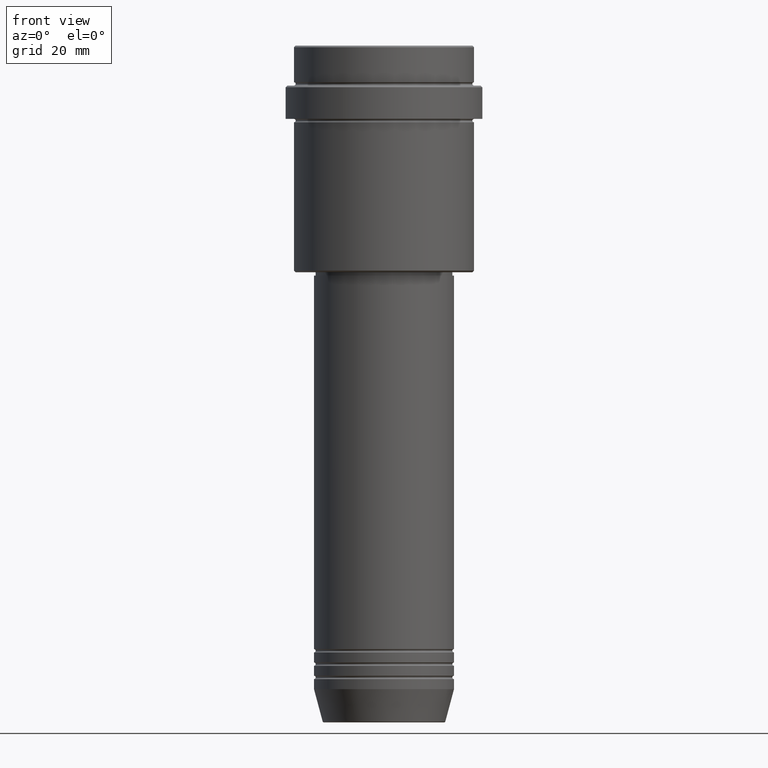
[diagram: clean part render]
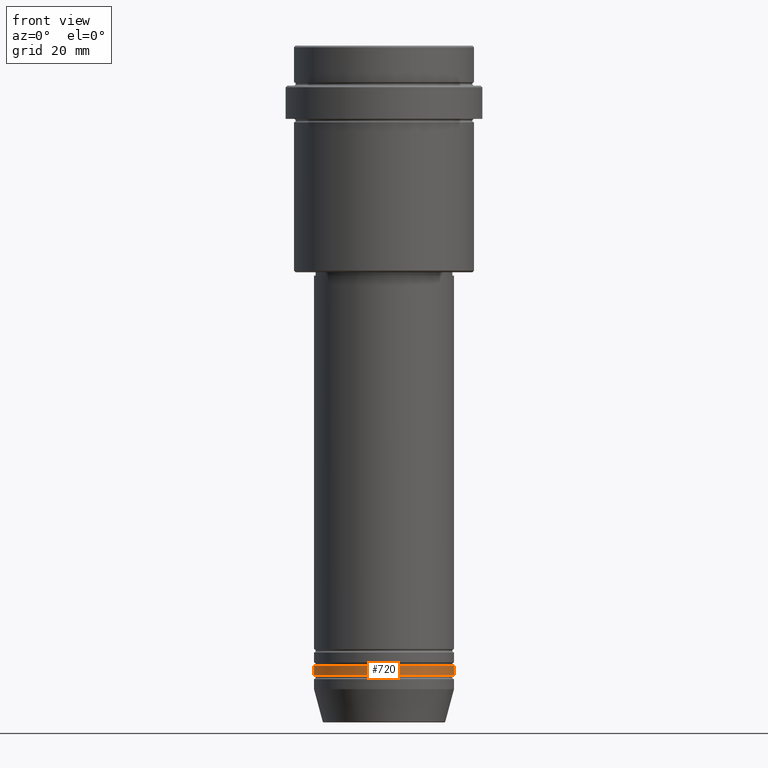
[diagram: same view with one face highlighted and labeled with its STEP entity id]
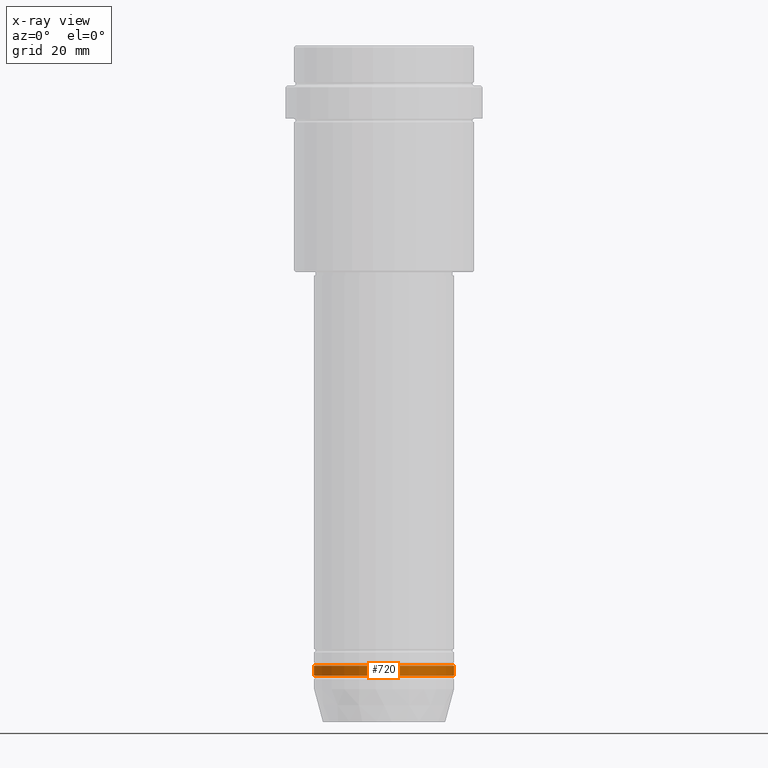
[diagram: x-ray of the same camera — body ghosted, the highlighted face saturated]
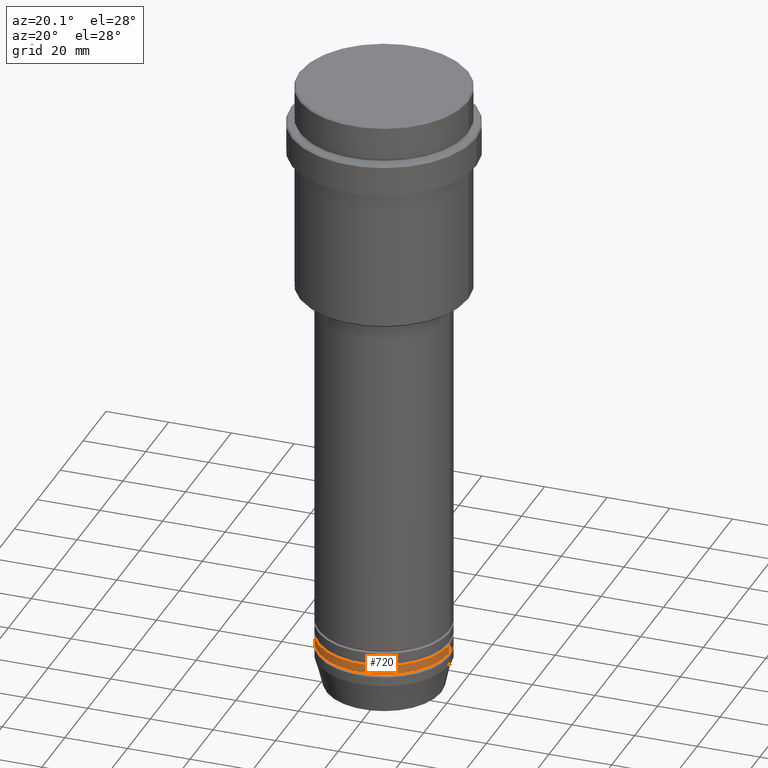
[diagram: same view with one face highlighted and labeled with its STEP entity id]
A machine part, front view. The second image highlights one B-rep face of the part: STEP entity #720.
The next image is the same camera in x-ray: the body ghosted, the highlighted face saturated — about 0% of this face is hidden behind the body in this view.
A second angle (auxiliary view) of the same face is appended — the face is thin or edge-on in the first view.
In plain terms, the highlighted cylindrical surface (partial cylindrical patch) has radius 21 mm, axis along (-0, -0, 1).
Its self-contained STEP definition (entity closure, byte-faithful):
#42 = CARTESIAN_POINT ( 'NONE',  ( 0.000000000000000000, 0.000000000000000000, -185.9999999999998863 ) ) ;
#92 = DIRECTION ( 'NONE',  ( -0.000000000000000000, -0.000000000000000000, 1.000000000000000000 ) ) ;
#156 = EDGE_CURVE ( 'NONE', #1375, #1110, #706, .T. ) ;
#178 = VERTEX_POINT ( 'NONE', #453 ) ;
#300 = CARTESIAN_POINT ( 'NONE',  ( 21.00000000000000000, 0.000000000000000000, -185.9999999999998863 ) ) ;
#305 = DIRECTION ( 'NONE',  ( -0.000000000000000000, -0.000000000000000000, 1.000000000000000000 ) ) ;
#329 = ORIENTED_EDGE ( 'NONE', *, *, #156, .F. ) ;
#401 = ORIENTED_EDGE ( 'NONE', *, *, #1241, .T. ) ;
#423 = ORIENTED_EDGE ( 'NONE', *, *, #1345, .T. ) ;
#440 = EDGE_LOOP ( 'NONE', ( #754, #423, #401, #329 ) ) ;
#453 = CARTESIAN_POINT ( 'NONE',  ( -21.00000000000000000, 2.571758278209441661E-15, -188.9999999999998863 ) ) ;
#513 = LINE ( 'NONE', #1073, #906 ) ;
#673 = FACE_OUTER_BOUND ( 'NONE', #440, .T. ) ;
#692 = CARTESIAN_POINT ( 'NONE',  ( -21.00000000000000000, 2.571758278209441661E-15, -185.9999999999998863 ) ) ;
#706 = CIRCLE ( 'NONE', #886, 21.00000000000000000 ) ;
#711 = LINE ( 'NONE', #1262, #1062 ) ;
#720 = ADVANCED_FACE ( 'NONE', ( #673 ), #1104, .T. ) ;
#754 = ORIENTED_EDGE ( 'NONE', *, *, #1169, .F. ) ;
#762 = DIRECTION ( 'NONE',  ( 1.000000000000000000, 0.000000000000000000, 0.000000000000000000 ) ) ;
#787 = DIRECTION ( 'NONE',  ( 1.000000000000000000, 0.000000000000000000, 0.000000000000000000 ) ) ;
#835 = DIRECTION ( 'NONE',  ( -0.000000000000000000, -0.000000000000000000, 1.000000000000000000 ) ) ;
#868 = CARTESIAN_POINT ( 'NONE',  ( 0.000000000000000000, 0.000000000000000000, -188.9999999999998863 ) ) ;
#886 = AXIS2_PLACEMENT_3D ( 'NONE', #42, #1120, #1223 ) ;
#906 = VECTOR ( 'NONE', #92, 1000.000000000000000 ) ;
#929 = CARTESIAN_POINT ( 'NONE',  ( 21.00000000000000000, 0.000000000000000000, -188.9999999999998863 ) ) ;
#1015 = CARTESIAN_POINT ( 'NONE',  ( 0.000000000000000000, 0.000000000000000000, 0.000000000000000000 ) ) ;
#1042 = CIRCLE ( 'NONE', #1269, 21.00000000000000000 ) ;
#1062 = VECTOR ( 'NONE', #835, 1000.000000000000000 ) ;
#1073 = CARTESIAN_POINT ( 'NONE',  ( 21.00000000000000000, 0.000000000000000000, 0.000000000000000000 ) ) ;
#1104 = CYLINDRICAL_SURFACE ( 'NONE', #1406, 21.00000000000000000 ) ;
#1110 = VERTEX_POINT ( 'NONE', #300 ) ;
#1111 = DIRECTION ( 'NONE',  ( -0.000000000000000000, -0.000000000000000000, 1.000000000000000000 ) ) ;
#1120 = DIRECTION ( 'NONE',  ( -0.000000000000000000, -0.000000000000000000, 1.000000000000000000 ) ) ;
#1169 = EDGE_CURVE ( 'NONE', #178, #1375, #711, .T. ) ;
#1171 = VERTEX_POINT ( 'NONE', #929 ) ;
#1223 = DIRECTION ( 'NONE',  ( 1.000000000000000000, 0.000000000000000000, 0.000000000000000000 ) ) ;
#1241 = EDGE_CURVE ( 'NONE', #1171, #1110, #513, .T. ) ;
#1262 = CARTESIAN_POINT ( 'NONE',  ( -21.00000000000000000, 2.571758278209441661E-15, 0.000000000000000000 ) ) ;
#1269 = AXIS2_PLACEMENT_3D ( 'NONE', #868, #305, #762 ) ;
#1345 = EDGE_CURVE ( 'NONE', #178, #1171, #1042, .T. ) ;
#1375 = VERTEX_POINT ( 'NONE', #692 ) ;
#1406 = AXIS2_PLACEMENT_3D ( 'NONE', #1015, #1111, #787 ) ;